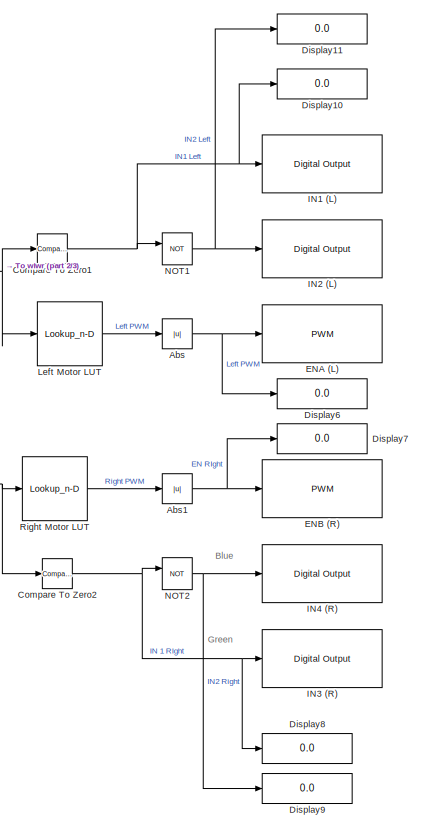
[diagram: root canvas - part 1/3, right side, full height]
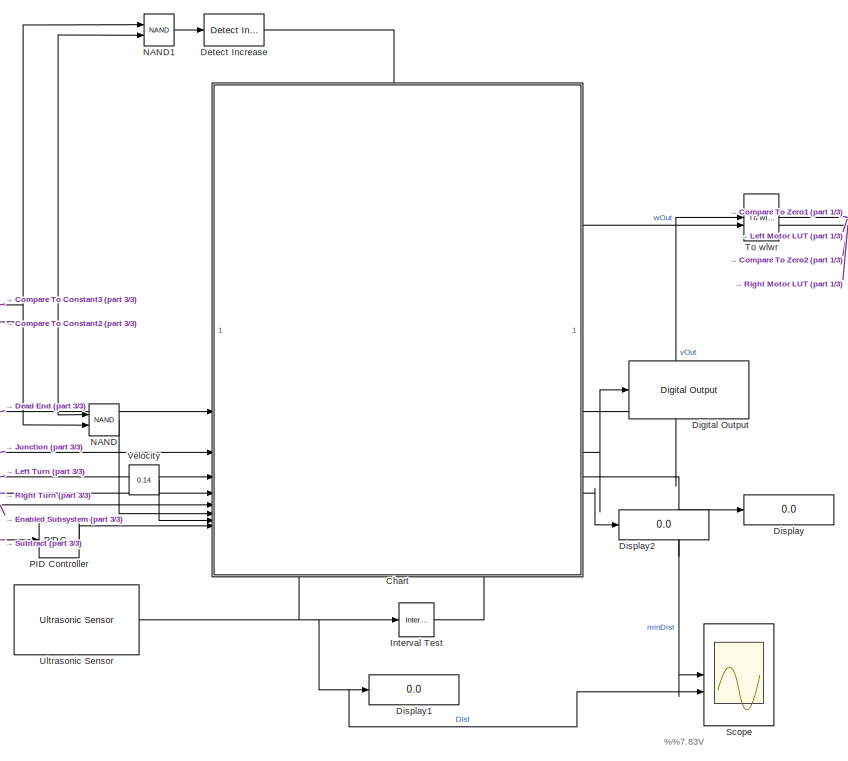
[diagram: root canvas - part 2/3, center side, full height]
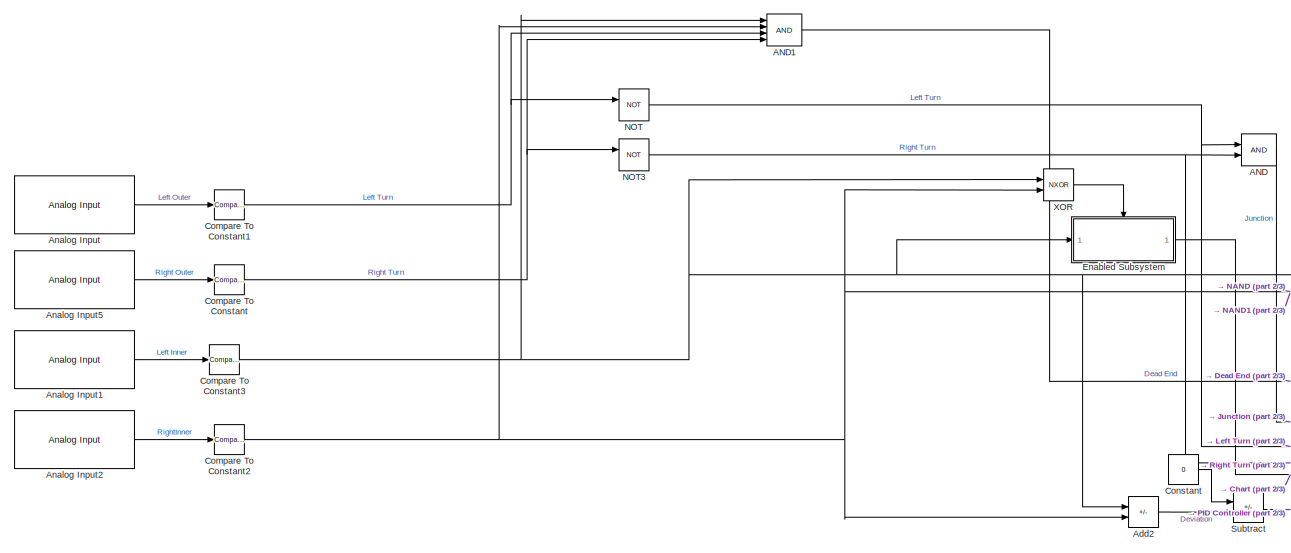
[diagram: root canvas - part 3/3, middle left region]
MODEL slx_f8d7648a3642
KIND model
CONFIG AbsTol = auto
CONFIG EnableMultiTasking = on
CONFIG FixedStep = auto
CONFIG MaxStep = auto
CONFIG MinStep = auto
CONFIG RelTol = 1e-3
CONFIG SampleTimeConstraint = Unconstrained
CONFIG SolverName = FixedStepAuto
CONFIG StartTime = 0.0
CONFIG StopTime = Inf
BLOCK [Logic] AND
  AllPortsSameDT = off
  IconShape = distinctive
  OutDataTypeStr = boolean
BLOCK [Logic] AND1
  AllPortsSameDT = off
  IconShape = distinctive
  Inputs = 4
  OutDataTypeStr = boolean
BLOCK [Abs] Abs
  SaturateOnIntegerOverflow = off
BLOCK [Abs] Abs1
  SaturateOnIntegerOverflow = off
BLOCK [Sum] Add2
  IconShape = rectangular
  Inputs = +-
  OutDataTypeStr = single
BLOCK [Reference] Analog Input  REF=arduinolib/Analog Input
  SourceBlock = arduinolib/Analog Input
  SourceType = Arduino Analog Input
BLOCK [Reference] Analog Input1  REF=arduinolib/Analog Input
  SourceBlock = arduinolib/Analog Input
  SourceType = Arduino Analog Input
BLOCK [Reference] Analog Input2  REF=arduinolib/Analog Input
  SourceBlock = arduinolib/Analog Input
  SourceType = Arduino Analog Input
BLOCK [Reference] Analog Input5  REF=arduinolib/Analog Input
  SourceBlock = arduinolib/Analog Input
  SourceType = Arduino Analog Input
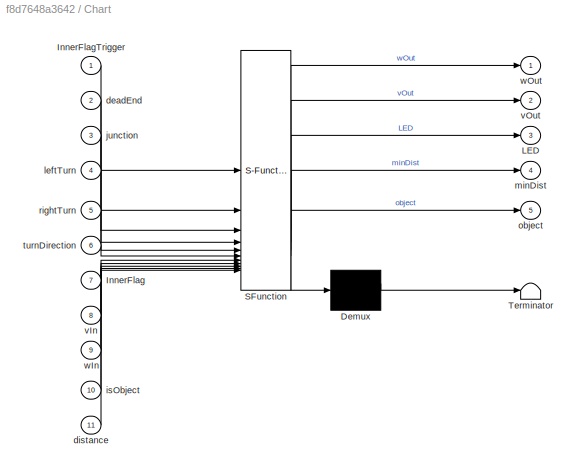
BLOCK [SubSystem] Chart
  ErrorFcn = Stateflow.Translate.translate
  PermitHierarchicalResolution = ExplicitOnly
  PortSchema = {"entries":[{"content":{"sides":[{"content":{"connectorIds":["In2","In3","In4","In5","In6","In7","In8","In9"]},"type":"ConnectorPlacement.EquallySpacedRectSide","uuid":"48d79888-744e-426e-80fd-4006989ca9f3"},{"content":{"connectorIds":["Out2","Out1","Out3","Out4","Out5"],"side":"RIGHT"},"type":"ConnectorPlacement.EquallySpacedRectSide","uuid":"a2b0e608-2864-4100-97ad-f114c331665e"},{"content":{"co...<+472ch>
  SFBlockType = Chart
  TreatAsAtomicUnit = on
BLOCK [Demux] Chart/ Demux 
  Outputs = 1
BLOCK [S-Function] Chart/ SFunction 
  EnableBusSupport = on
  FunctionName = sf_sfun
  PortCounts = [11 6]
  SFcnIsStateOwnerBlock = off
  SFunctionDeploymentMode = off
  Tag = Stateflow S-Function 3
BLOCK [Terminator] Chart/ Terminator 
BLOCK [Inport] Chart/InnerFlag
  Port = 7
BLOCK [Inport] Chart/InnerFlagTrigger
BLOCK [Outport] Chart/LED
  Port = 3
BLOCK [Inport] Chart/deadEnd
  Port = 2
BLOCK [Inport] Chart/distance
  Port = 11
BLOCK [Inport] Chart/isObject
  Port = 10
BLOCK [Inport] Chart/junction
  Port = 3
BLOCK [Inport] Chart/leftTurn
  Port = 4
BLOCK [Outport] Chart/minDist
  Port = 4
BLOCK [Outport] Chart/object
  Port = 5
BLOCK [Inport] Chart/rightTurn
  Port = 5
BLOCK [Inport] Chart/turnDirection
  Port = 6
BLOCK [Inport] Chart/vIn
  Port = 8
BLOCK [Outport] Chart/vOut
  Port = 2
BLOCK [Inport] Chart/wIn
  Port = 9
BLOCK [Outport] Chart/wOut
BLOCK [Reference] Compare To Constant  REF=simulink/Logic and Bit
Operations/Compare
To Constant
  SourceBlock = simulink/Logic and Bit\nOperations/Compare\nTo Constant
  SourceType = Compare To Constant
BLOCK [Reference] Compare To Constant1  REF=simulink/Logic and Bit
Operations/Compare
To Constant
  SourceBlock = simulink/Logic and Bit\nOperations/Compare\nTo Constant
  SourceType = Compare To Constant
BLOCK [Reference] Compare To Constant2  REF=simulink/Logic and Bit
Operations/Compare
To Constant
  SourceBlock = simulink/Logic and Bit\nOperations/Compare\nTo Constant
  SourceType = Compare To Constant
BLOCK [Reference] Compare To Constant3  REF=simulink/Logic and Bit
Operations/Compare
To Constant
  SourceBlock = simulink/Logic and Bit\nOperations/Compare\nTo Constant
  SourceType = Compare To Constant
BLOCK [Reference] Compare To Zero1  REF=simulink/Logic and Bit
Operations/Compare
To Zero
  SourceBlock = simulink/Logic and Bit\nOperations/Compare\nTo Zero
  SourceType = Compare To Zero
BLOCK [Reference] Compare To Zero2  REF=simulink/Logic and Bit
Operations/Compare
To Zero
  SourceBlock = simulink/Logic and Bit\nOperations/Compare\nTo Zero
  SourceType = Compare To Zero
BLOCK [Constant] Constant
  Value = 0
BLOCK [Reference] Detect Increase  REF=simulink/Logic and Bit
Operations/Detect
Increase
  SourceBlock = simulink/Logic and Bit\nOperations/Detect\nIncrease
  SourceType = Detect Increase
BLOCK [Reference] Digital Output  REF=arduinolib/Digital Output
  SourceBlock = arduinolib/Digital Output
  SourceType = Arduino Digital Output
BLOCK [Display] Display
  Decimation = 1
BLOCK [Display] Display1
  Decimation = 1
BLOCK [Display] Display10
  Decimation = 1
BLOCK [Display] Display11
  Decimation = 1
BLOCK [Display] Display2
  Decimation = 1
BLOCK [Display] Display6
  Decimation = 1
BLOCK [Display] Display7
  Decimation = 1
BLOCK [Display] Display8
  Decimation = 1
BLOCK [Display] Display9
  Decimation = 1
BLOCK [Reference] ENA (L)  REF=arduinolib/PWM
  SourceBlock = arduinolib/PWM
  SourceType = Arduino PWM
BLOCK [Reference] ENB (R)  REF=arduinolib/PWM
  SourceBlock = arduinolib/PWM
  SourceType = Arduino PWM
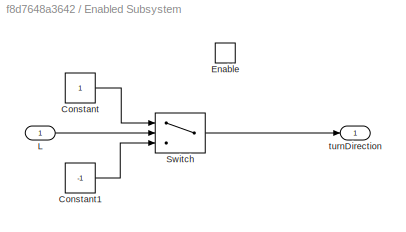
BLOCK [SubSystem] Enabled Subsystem
  TreatAsAtomicUnit = on
BLOCK [Constant] Enabled Subsystem/Constant
BLOCK [Constant] Enabled Subsystem/Constant1
  Value = -1
BLOCK [EnablePort] Enabled Subsystem/Enable
BLOCK [Inport] Enabled Subsystem/L
BLOCK [Switch] Enabled Subsystem/Switch
  Criteria = u2 > Threshold
  InputSameDT = off
  SaturateOnIntegerOverflow = off
BLOCK [Outport] Enabled Subsystem/turnDirection
BLOCK [Reference] IN1 (L)  REF=arduinolib/Digital Output
  SourceBlock = arduinolib/Digital Output
  SourceType = Arduino Digital Output
BLOCK [Reference] IN2 (L)  REF=arduinolib/Digital Output
  SourceBlock = arduinolib/Digital Output
  SourceType = Arduino Digital Output
BLOCK [Reference] IN3 (R)  REF=arduinolib/Digital Output
  SourceBlock = arduinolib/Digital Output
  SourceType = Arduino Digital Output
BLOCK [Reference] IN4 (R)  REF=arduinolib/Digital Output
  SourceBlock = arduinolib/Digital Output
  SourceType = Arduino Digital Output
BLOCK [Reference] Interval Test  REF=simulink/Logic and Bit
Operations/Interval Test
  SourceBlock = simulink/Logic and Bit\nOperations/Interval Test
  SourceType = Interval Test
BLOCK [Lookup_n-D] Left Motor LUT
  BreakpointsForDimension1 = WheelSpeed
  ExtrapMethod = Clip
  InputPortMap = u0
  InternalRulePriority = Speed
  InterpMethod = Nearest
  NumberOfTableDimensions = 1
  RndMeth = Simplest
  Table = InputPWM
BLOCK [Logic] NAND
  AllPortsSameDT = off
  IconShape = distinctive
  Operator = NAND
  OutDataTypeStr = boolean
BLOCK [Logic] NAND1
  AllPortsSameDT = off
  IconShape = distinctive
  Operator = NAND
  OutDataTypeStr = boolean
BLOCK [Logic] NOT
  AllPortsSameDT = off
  IconShape = distinctive
  Operator = NOT
  OutDataTypeStr = boolean
BLOCK [Logic] NOT1
  AllPortsSameDT = off
  IconShape = distinctive
  Operator = NOT
  OutDataTypeStr = boolean
BLOCK [Logic] NOT2
  AllPortsSameDT = off
  IconShape = distinctive
  Operator = NOT
  OutDataTypeStr = boolean
BLOCK [Logic] NOT3
  AllPortsSameDT = off
  IconShape = distinctive
  Operator = NOT
  OutDataTypeStr = boolean
BLOCK [Reference] PID Controller  REF=slpidlib/PID Controller
  LibrarySourceBlock = simulink/Continuous/PID Controller
  SourceBlock = slpidlib/PID Controller
  SourceType = PID 1dof
BLOCK [Lookup_n-D] Right Motor LUT
  BreakpointsForDimension1 = WheelSpeed
  ExtrapMethod = Clip
  InputPortMap = u0
  InternalRulePriority = Speed
  InterpMethod = Nearest
  NumberOfTableDimensions = 1
  RndMeth = Simplest
  Table = InputPWM
BLOCK [Scope] Scope
  Floating = off
  NumInputPorts = 2
  ScopeSpecificationString = Simulink.scopes.TimeScopeBlockCfg('CurrentConfiguration', extmgr.ConfigurationSet(extmgr.Configuration('Core','General UI',true),extmgr.Configuration('Core','Source UI',true),extmgr.Configuration('Sources','WiredSimulink',true),extmgr.Configuration('Visuals','Time Domain',true,'SerializedDisplays',{struct('MinYLimReal','-12.5','MaxYLimReal','112.5','YLabelReal','','MinYLimMag','0.00000','MaxYLimMa...<+1362ch>
BLOCK [Sum] Subtract
  IconShape = rectangular
  Inputs = +-
BLOCK [Reference] To wlwr  REF=mobileRoboticsTrainingLib/To wlwr
  SourceBlock = mobileRoboticsTrainingLib/To wlwr
  SourceProductName = Mobile Robotics Training Library
  SourceType = To wlwr
BLOCK [Reference] Ultrasonic Sensor  REF=arduinosensorlib/Ultrasonic Sensor
  SourceBlock = arduinosensorlib/Ultrasonic Sensor
  SourceType = Arduino Ultrasonic Sensor
BLOCK [Constant] Velocity
  Value = 0.14
BLOCK [Logic] XOR
  AllPortsSameDT = off
  IconShape = distinctive
  Operator = NXOR
  OutDataTypeStr = boolean
ANNOTATION (root): %%7.83V
ANNOTATION (root): Blue
ANNOTATION (root): Green
LINE AND1:1 -> Chart:2
LINE AND:1 -> Chart:3
NET Abs1:1 -> Display7:1, ENB (R):1
NET Abs:1 -> Display6:1, ENA (L):1
LINE Add2:1 -> Subtract:2
LINE Analog Input1:1 -> Compare To Constant3:1
LINE Analog Input2:1 -> Compare To Constant2:1
LINE Analog Input5:1 -> Compare To Constant:1
LINE Analog Input:1 -> Compare To Constant1:1
LINE Chart:1 -> To wlwr:2
LINE Chart:2 -> To wlwr:1
LINE Chart:3 -> Digital Output:1
NET Chart:4 -> Display:1, Scope:1
LINE Chart:5 -> Display2:1
NET Compare To Constant1:1 -> AND1:3, NOT:1
NET Compare To Constant2:1 -> AND1:2, Add2:2, NAND1:2, NAND:1, XOR:2
NET Compare To Constant3:1 -> AND1:1, Add2:1, Enabled Subsystem:1, NAND1:1, NAND:2, XOR:1
NET Compare To Constant:1 -> AND1:4, NOT3:1
NET Compare To Zero1:1 -> Display10:1, IN1 (L):1, NOT1:1
NET Compare To Zero2:1 -> Display8:1, IN3 (R):1, NOT2:1
LINE Constant:1 -> Subtract:1
LINE Detect Increase:1 -> Chart:1
LINE Enabled Subsystem/Constant1:1 -> Enabled Subsystem/Switch:3
LINE Enabled Subsystem/Constant:1 -> Enabled Subsystem/Switch:1
LINE Enabled Subsystem/L:1 -> Enabled Subsystem/Switch:2
LINE Enabled Subsystem/Switch:1 -> Enabled Subsystem/turnDirection:1
LINE Enabled Subsystem:1 -> Chart:6
LINE Interval Test:1 -> Chart:10
LINE Left Motor LUT:1 -> Abs:1
LINE NAND1:1 -> Detect Increase:1
LINE NAND:1 -> Chart:7
NET NOT1:1 -> Display11:1, IN2 (L):1
NET NOT2:1 -> Display9:1, IN4 (R):1
NET NOT3:1 -> AND:2, Chart:5
NET NOT:1 -> AND:1, Chart:4
LINE PID Controller:1 -> Chart:9
LINE Right Motor LUT:1 -> Abs1:1
LINE Subtract:1 -> PID Controller:1
NET To wlwr:1 -> Compare To Zero1:1, Left Motor LUT:1
NET To wlwr:2 -> Compare To Zero2:1, Right Motor LUT:1
NET Ultrasonic Sensor:1 -> Chart:11, Display1:1, Interval Test:1, Scope:2
LINE Velocity:1 -> Chart:8
LINE XOR:1 -> Enabled Subsystem:enable
note: NET lines group one-source signal fan-out (src -> all destinations, sorted); 1:1 wires keep LINE
CHART Chart states=23 transitions=70
  STATE_LABEL 'Slower: wIn: 0.72, vIn = 1.1'
  STATE_LABEL 'leftAfterJunction1\nentry:\nwOut = 1.5\nexit:\nprevTurn = -1'
  STATE_LABEL 'turnLeft1\n\nentry:\nvOut = 0.105 ;%% 0.105; % Small linear velocity\nwOut = wIn;\nduring:\non after(400, msec):\nvOut = 0;\nwOut = 1.5;% Counterclockwise'
  STATE_LABEL 'turnRight1\n\nentry:\nvOut = 0.105; % Small linear velocity Smaller: 0.105\nwOut = wIn;\nduring:\non after(400, msec):\nvOut = 0;\nwOut = -1.5;% Clockwise'
  STATE_LABEL 'leftAfterJunction\n% Seperate state due to\n% Timing difference\nentry:\nwOut = 1.5\nexit:;\nprevTurn = -1'
  STATE_LABEL 'turnLeft\n\nentry:\nvOut = 0.105 ; % Small linear velocity\nwOut = wIn;\nduring:\non after(400, msec):\nvOut = 0;\nwOut = 1.5; % Counterclockwise'
  STATE_LABEL 'turnRight\n\nentry:\nvOut = 0.105; % Small linear velocity\nwOut = wIn;\nduring:\non after(400, msec):\nvOut = 0;\nwOut = -1.5;% Clockwise'
  STATE_LABEL 'lineFollowing1\n\nentry, during:\nwOut = wIn  % from PI controller\nvOut = vIn % Constant\n'
  STATE_LABEL 'atJunction1\n% Various options\nentry:\nvOut, wOut = 0;\nduring:\nvOut = vIn;\nexit:\nvOut = 0;\n'
  STATE_LABEL 'rightAfterJunction1\nentry:\nwOut = -1.5\nexit:\nprevTurn = 1;\n'
  STATE_LABEL 'returnToPath\n\nentry:\nvOut = 0; % No linear velocity\nwOut = 1.6'
  STATE_LABEL 'lineFollowing\n\nentry, during:\nwOut = wIn  % from PI controller\nvOut = vIn % Constant\n'
  STATE_LABEL 'atJunction\n% Various options\nentry:\nvOut, wOut = 0;\nduring:\nvOut = vIn;\nexit:\nvOut = 0;\n'
  STATE_LABEL 'initialize\n\nentry:\nminDist = 100;\n'
  STATE_LABEL 'rightAfterJunction\n% Seperate state due to\n% Timing difference\nentry:\nwOut = -1.5\nexit:\nprevTurn = 1;\n'
  STATE_LABEL 'turnAround1\n\nentry:\nvOut = 0; % No linear velocity\nwOut = 1.6 % Slower: 1.35\nexit:\nLED = 0;'
  STATE_LABEL 'correction1\n\nentry:\nvOut = 0; % No linear velocity\nwOut = turnDirection*1.9 % Slower: 1.35\n% Turn direction dependent on which sensor was last on the line'
  STATE_LABEL 'finishLine\n\nentry:\nwOut = 0;\nvOut = 0'
  STATE_LABEL 'measureObject1\n% Record distance to object\nentry:\nLED = 1;'
  STATE_LABEL 'turnAround\n\nentry:\nvOut = 0; % No linear velocity\nwOut = 1.6 % Slower: 1.35\nexit:\nLED = 0;'
  STATE_LABEL 'correction\n\nentry:\nvOut = 0; % No linear velocity\nwOut = turnDirection*1.9 % Slower: 1.35\n% Turn direction dependent on which sensor was last on the line'
  STATE_LABEL 'measureObject\n% Record distance to object\nentry:\nLED = 1;\n'
  STATE_LABEL 'stop\n\nentry:\nvOut = 0;\nwOut = 0;'
CHART  states=0 transitions=0
